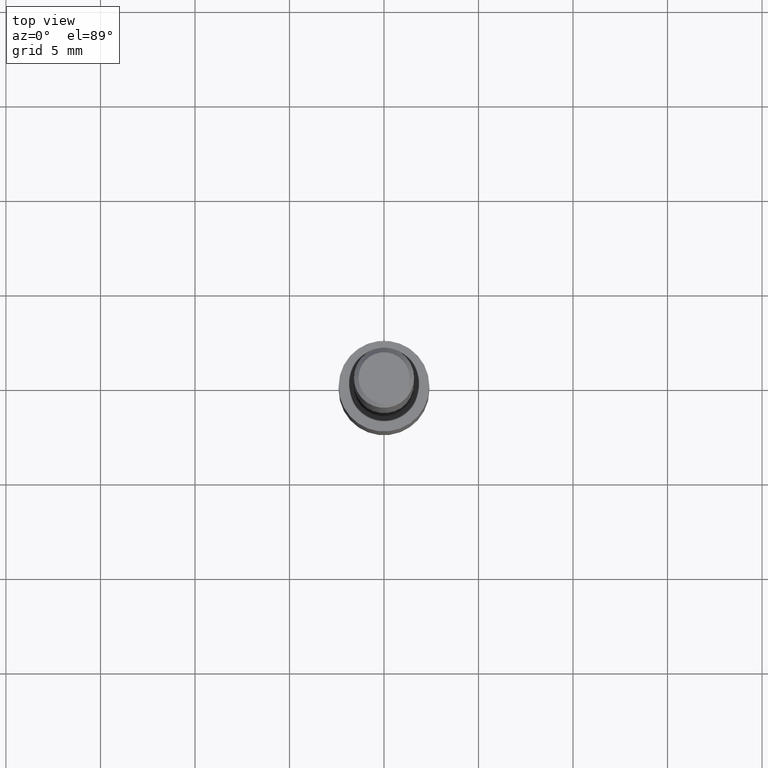
[diagram: clean part render]
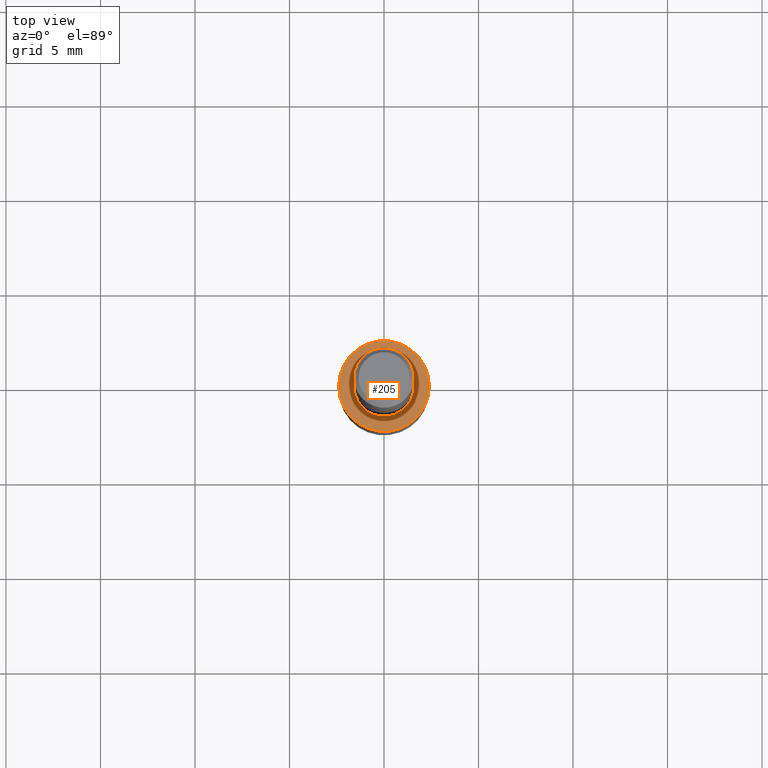
[diagram: same view with one face highlighted and labeled with its STEP entity id]
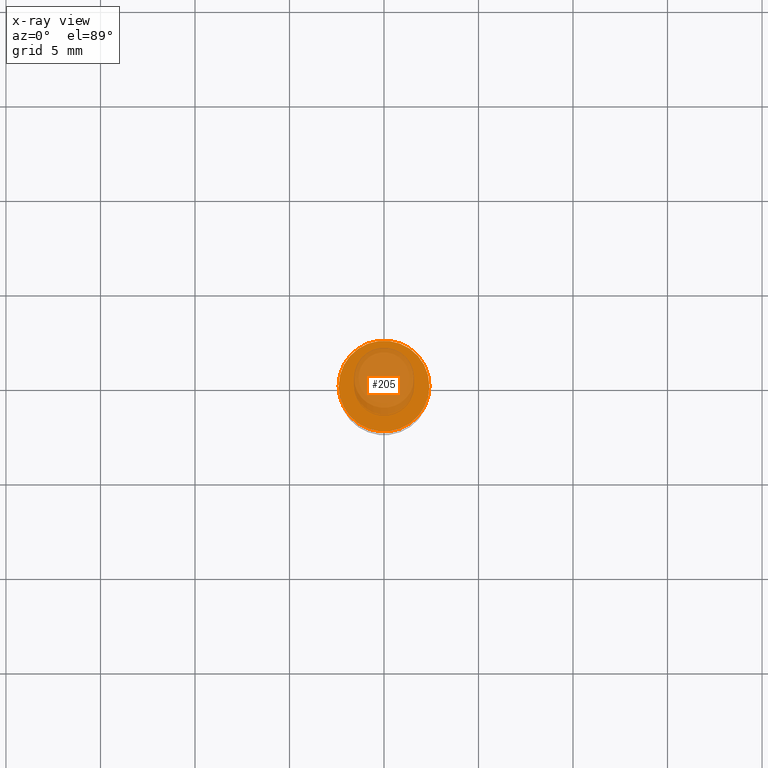
[diagram: x-ray of the same camera — body ghosted, the highlighted face saturated]
A machine part, top view. The second image highlights one B-rep face of the part: STEP entity #205.
The next image is the same camera in x-ray: the body ghosted, the highlighted face saturated — about 50% of this face is hidden behind the body in this view.
In plain terms, the highlighted planar face has unit normal (0, -0, -1).
Its self-contained STEP definition (entity closure, byte-faithful):
#2 = DIRECTION ( 'NONE',  ( -2.445468806185136597E-29, 3.491481338843145583E-15, 1.000000000000000000 ) ) ;
#22 = CARTESIAN_POINT ( 'NONE',  ( 2.445468806185136877E-29, -3.491481338843145977E-15, -1.000000000000000222 ) ) ;
#29 = VERTEX_POINT ( 'NONE', #61 ) ;
#35 = ORIENTED_EDGE ( 'NONE', *, *, #253, .T. ) ;
#45 = CARTESIAN_POINT ( 'NONE',  ( 3.454801746971892367E-29, -2.046059119973165044E-15, -1.000000000000000222 ) ) ;
#54 = EDGE_LOOP ( 'NONE', ( #193, #35 ) ) ;
#61 = CARTESIAN_POINT ( 'NONE',  ( -0.09449999999999998679, -3.615960851268418458E-15, -1.000000000000000222 ) ) ;
#64 = DIRECTION ( 'NONE',  ( -1.000000000000000000, 6.982962677686265922E-15, -4.876176775795935793E-29 ) ) ;
#70 = CARTESIAN_POINT ( 'NONE',  ( 0.09449999999999998679, -4.151371311884497992E-15, -1.000000000000000222 ) ) ;
#96 = CARTESIAN_POINT ( 'NONE',  ( 2.445468806185136877E-29, -3.491481338843145977E-15, -1.000000000000000222 ) ) ;
#104 = AXIS2_PLACEMENT_3D ( 'NONE', #22, #126, #233 ) ;
#109 = AXIS2_PLACEMENT_3D ( 'NONE', #45, #148, #64 ) ;
#126 = DIRECTION ( 'NONE',  ( -2.445468806185136597E-29, 3.491481338843145583E-15, 1.000000000000000000 ) ) ;
#148 = DIRECTION ( 'NONE',  ( 2.438088387897960049E-29, -3.491481338843145188E-15, -1.000000000000000000 ) ) ;
#177 = PLANE ( 'NONE',  #109 ) ;
#180 = CIRCLE ( 'NONE', #259, 0.09449999999999998679 ) ;
#181 = FACE_OUTER_BOUND ( 'NONE', #54, .T. ) ;
#193 = ORIENTED_EDGE ( 'NONE', *, *, #229, .T. ) ;
#196 = VERTEX_POINT ( 'NONE', #70 ) ;
#201 = CIRCLE ( 'NONE', #104, 0.09449999999999998679 ) ;
#204 = DIRECTION ( 'NONE',  ( 1.000000000000000000, -6.982962677686266711E-15, 0.000000000000000000 ) ) ;
#205 = ADVANCED_FACE ( 'NONE', ( #181 ), #177, .F. ) ;
#229 = EDGE_CURVE ( 'NONE', #196, #29, #180, .T. ) ;
#233 = DIRECTION ( 'NONE',  ( 1.000000000000000000, -6.982962677686266711E-15, 0.000000000000000000 ) ) ;
#253 = EDGE_CURVE ( 'NONE', #29, #196, #201, .T. ) ;
#259 = AXIS2_PLACEMENT_3D ( 'NONE', #96, #2, #204 ) ;